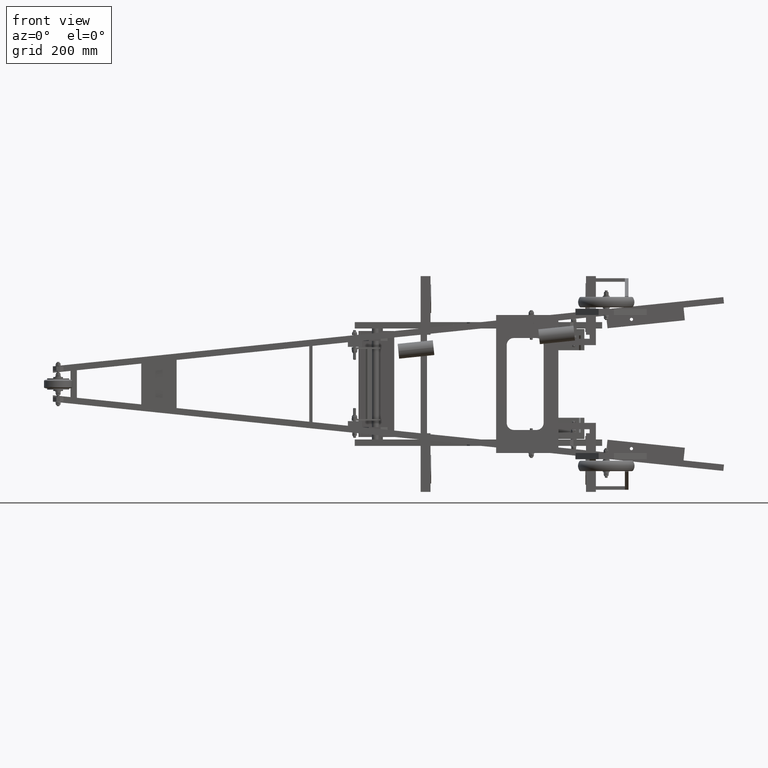
[diagram: clean part render]
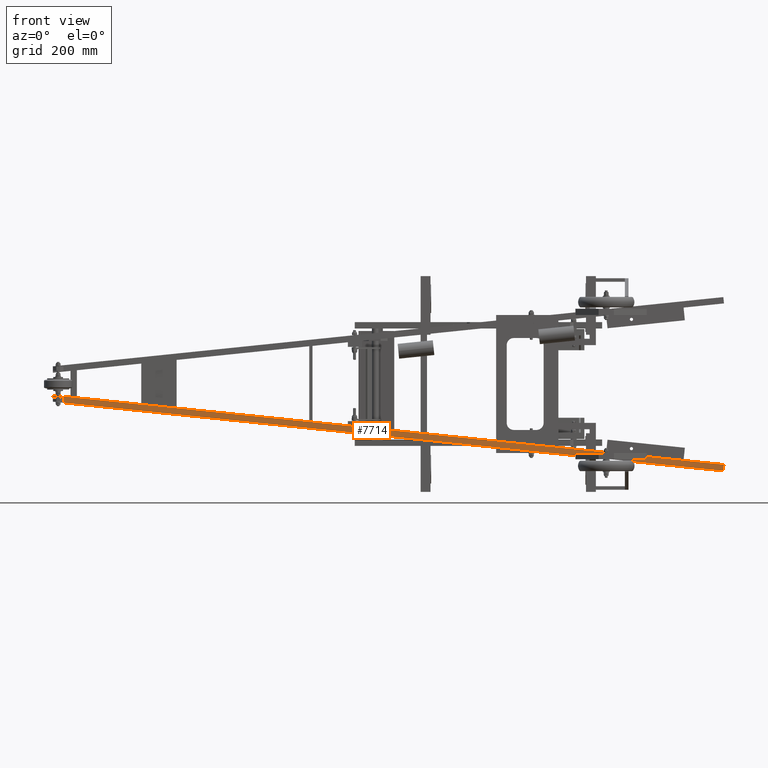
[diagram: same view with one face highlighted and labeled with its STEP entity id]
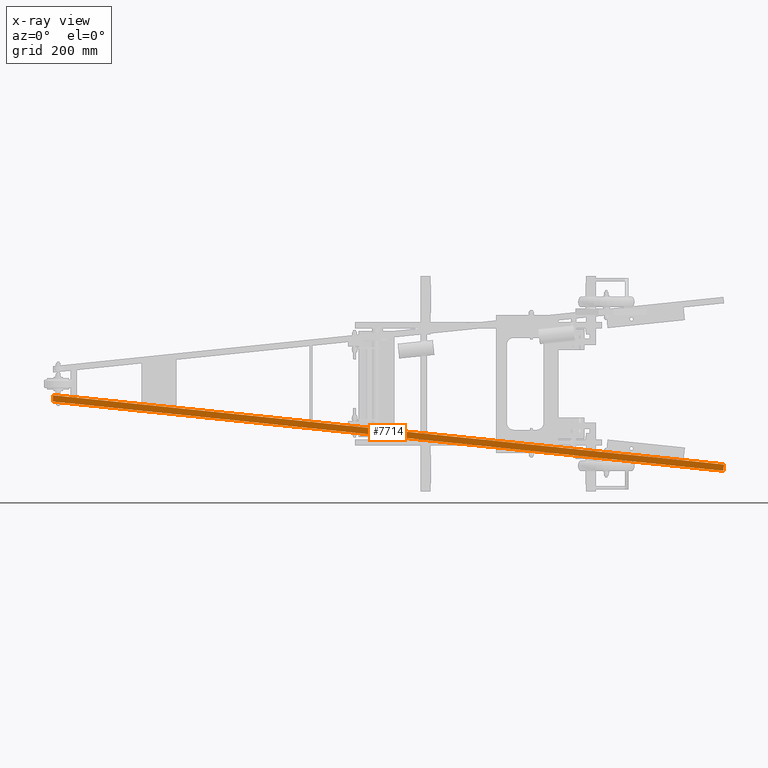
[diagram: x-ray of the same camera — body ghosted, the highlighted face saturated]
A machine part, front view. The second image highlights one B-rep face of the part: STEP entity #7714.
The next image is the same camera in x-ray: the body ghosted, the highlighted face saturated — about 0% of this face is hidden behind the body in this view.
In plain terms, the highlighted planar face has unit normal (0, -1, 0).
Its self-contained STEP definition (entity closure, byte-faithful):
#950 = EDGE_CURVE ( 'NONE', #7400, #7401, #5030, .T. ) ;
#953 = EDGE_CURVE ( 'NONE', #7398, #7399, #5029, .T. ) ;
#958 = EDGE_CURVE ( 'NONE', #7399, #7400, #5042, .T. ) ;
#962 = EDGE_CURVE ( 'NONE', #7398, #7401, #5050, .T. ) ;
#4149 = CARTESIAN_POINT ( 'NONE',  ( 1550.000000000000000, 0.0000000000000000000, -197.0951742379460300 ) ) ;
#4150 = DIRECTION ( 'NONE',  ( 0.9947125423363353300, -0.0000000000000000000, -0.1026983842072710400 ) ) ;
#4157 = CARTESIAN_POINT ( 'NONE',  ( -50.00000000000004300, 0.0000000000000000000, -50.00000000000000000 ) ) ;
#4158 = DIRECTION ( 'NONE',  ( -0.9947125423363353300, -0.0000000000000000000, 0.1026983842072708800 ) ) ;
#4169 = CARTESIAN_POINT ( 'NONE',  ( -50.00000000000004300, 0.0000000000000000000, -31.90431985735037300 ) ) ;
#4170 = DIRECTION ( 'NONE',  ( -0.0000000000000000000, -0.0000000000000000000, 1.000000000000000000 ) ) ;
#4177 = CARTESIAN_POINT ( 'NONE',  ( 1848.413762700900400, 0.0000000000000000000, -227.9046895001292500 ) ) ;
#4178 = DIRECTION ( 'NONE',  ( 0.1026983842072768500, -0.0000000000000000000, 0.9947125423363347700 ) ) ;
#5029 = LINE ( 'NONE', #4157, #5035 ) ;
#5030 = LINE ( 'NONE', #4149, #5031 ) ;
#5031 = VECTOR ( 'NONE', #4150, 1000.000000000000100 ) ;
#5035 = VECTOR ( 'NONE', #4158, 1000.000000000000000 ) ;
#5042 = LINE ( 'NONE', #4169, #5043 ) ;
#5043 = VECTOR ( 'NONE', #4170, 1000.000000000000000 ) ;
#5050 = LINE ( 'NONE', #4177, #5051 ) ;
#5051 = VECTOR ( 'NONE', #4178, 1000.000000000000000 ) ;
#7398 = VERTEX_POINT ( 'NONE', #24457 ) ;
#7399 = VERTEX_POINT ( 'NONE', #24458 ) ;
#7400 = VERTEX_POINT ( 'NONE', #24459 ) ;
#7401 = VERTEX_POINT ( 'NONE', #24460 ) ;
#7714 = ADVANCED_FACE ( 'NONE', ( #25368 ), #26182, .T. ) ;
#8728 = EDGE_LOOP ( 'NONE', ( #9280, #9281, #9282, #9283 ) ) ;
#9280 = ORIENTED_EDGE ( 'NONE', *, *, #953, .F. ) ;
#9281 = ORIENTED_EDGE ( 'NONE', *, *, #962, .T. ) ;
#9282 = ORIENTED_EDGE ( 'NONE', *, *, #950, .F. ) ;
#9283 = ORIENTED_EDGE ( 'NONE', *, *, #958, .F. ) ;
#24457 = CARTESIAN_POINT ( 'NONE',  ( 1846.565191785169400, 0.0000000000000000000, -245.8095152621833100 ) ) ;
#24458 = CARTESIAN_POINT ( 'NONE',  ( -50.00000000000004300, 0.0000000000000000000, -50.00000000000000000 ) ) ;
#24459 = CARTESIAN_POINT ( 'NONE',  ( -50.00000000000004300, 0.0000000000000000000, -31.90431985735037300 ) ) ;
#24460 = CARTESIAN_POINT ( 'NONE',  ( 1848.413762700900400, 0.0000000000000000000, -227.9046895001292500 ) ) ;
#25368 = FACE_OUTER_BOUND ( 'NONE', #8728, .T. ) ;
#25899 = AXIS2_PLACEMENT_3D ( 'NONE', #26183, #26188, #26189 ) ;
#26182 = PLANE ( 'NONE',  #25899 ) ;
#26183 = CARTESIAN_POINT ( 'NONE',  ( 1550.000000000000000, 0.0000000000000000000, -197.0951742379460300 ) ) ;
#26188 = DIRECTION ( 'NONE',  ( 0.0000000000000000000, -1.000000000000000000, 0.0000000000000000000 ) ) ;
#26189 = DIRECTION ( 'NONE',  ( 0.0000000000000000000, -0.0000000000000000000, -1.000000000000000000 ) ) ;